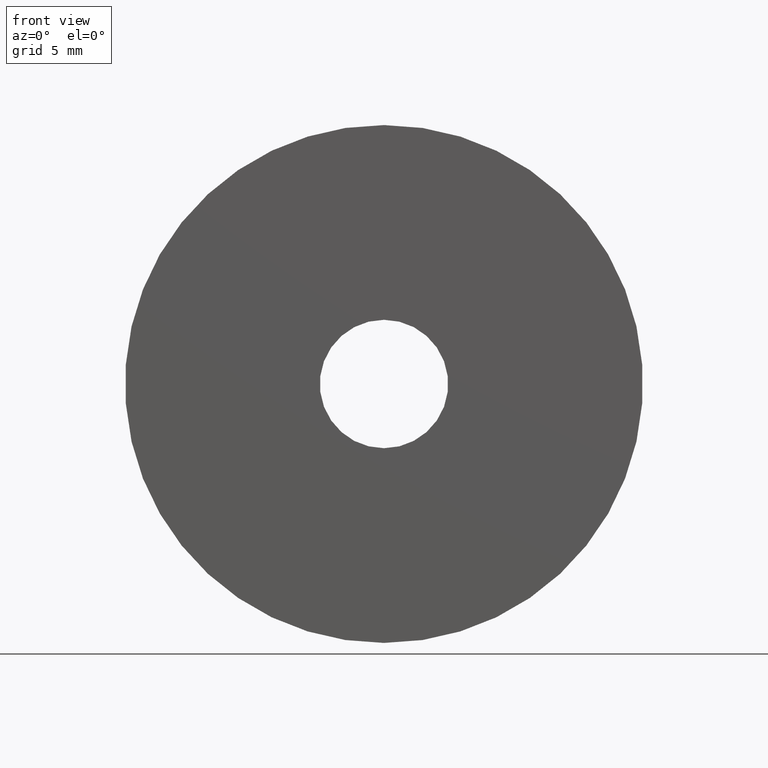
[diagram: clean part render]
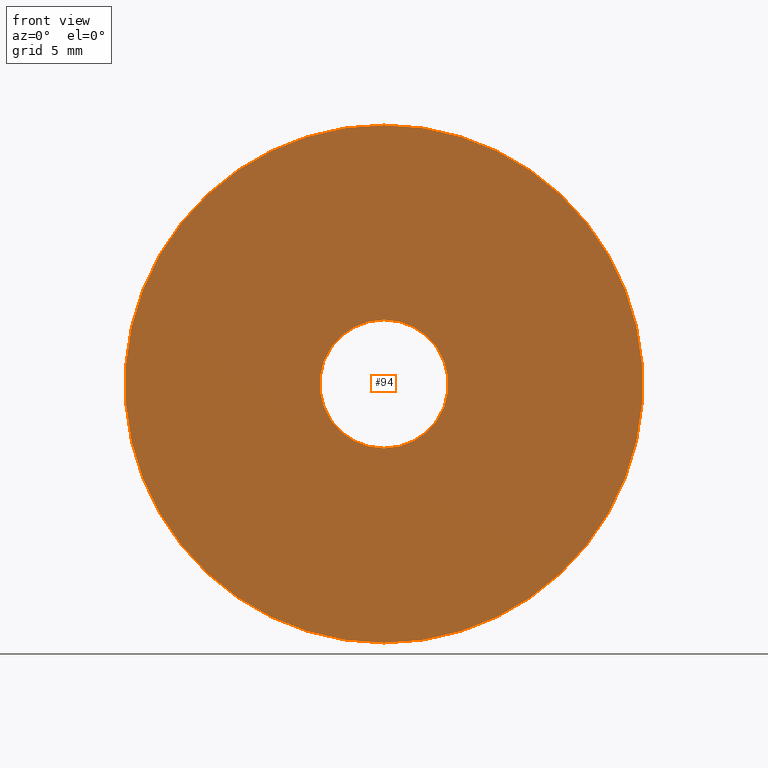
[diagram: same view with one face highlighted and labeled with its STEP entity id]
A machine part, front view. The second image highlights one B-rep face of the part: STEP entity #94.
In plain terms, the highlighted planar face has unit normal (0, 1, 0).
Its self-contained STEP definition (entity closure, byte-faithful):
#9 = CIRCLE ( 'NONE', #131, 3.100000000000000089 ) ;
#21 = AXIS2_PLACEMENT_3D ( 'NONE', #32, #105, #71 ) ;
#23 = EDGE_CURVE ( 'NONE', #211, #212, #34, .T. ) ;
#28 = EDGE_CURVE ( 'NONE', #212, #211, #150, .T. ) ;
#31 = EDGE_LOOP ( 'NONE', ( #241, #225 ) ) ;
#32 = CARTESIAN_POINT ( 'NONE',  ( 0.000000000000000000, -0.2500000000000000000, 0.000000000000000000 ) ) ;
#33 = CARTESIAN_POINT ( 'NONE',  ( 0.000000000000000000, -0.2500000000000000000, 0.000000000000000000 ) ) ;
#34 = CIRCLE ( 'NONE', #157, 12.50000000000000000 ) ;
#68 = VERTEX_POINT ( 'NONE', #155 ) ;
#71 = DIRECTION ( 'NONE',  ( 0.000000000000000000, 0.000000000000000000, 1.000000000000000000 ) ) ;
#89 = DIRECTION ( 'NONE',  ( 0.000000000000000000, 1.000000000000000000, 0.000000000000000000 ) ) ;
#94 = ADVANCED_FACE ( 'NONE', ( #226, #173 ), #249, .F. ) ;
#101 = AXIS2_PLACEMENT_3D ( 'NONE', #246, #89, #231 ) ;
#105 = DIRECTION ( 'NONE',  ( 0.000000000000000000, 1.000000000000000000, 0.000000000000000000 ) ) ;
#113 = CARTESIAN_POINT ( 'NONE',  ( 0.000000000000000000, -0.2500000000000000000, 0.000000000000000000 ) ) ;
#114 = DIRECTION ( 'NONE',  ( 0.000000000000000000, 1.000000000000000000, 0.000000000000000000 ) ) ;
#121 = EDGE_LOOP ( 'NONE', ( #239, #162 ) ) ;
#123 = VERTEX_POINT ( 'NONE', #127 ) ;
#127 = CARTESIAN_POINT ( 'NONE',  ( 3.796405077356794918E-16, -0.2500000000000000000, -3.100000000000000089 ) ) ;
#131 = AXIS2_PLACEMENT_3D ( 'NONE', #113, #114, #136 ) ;
#134 = CARTESIAN_POINT ( 'NONE',  ( 0.000000000000000000, -0.2500000000000000000, 0.000000000000000000 ) ) ;
#135 = CARTESIAN_POINT ( 'NONE',  ( 0.000000000000000000, -0.2500000000000000000, -12.50000000000000000 ) ) ;
#136 = DIRECTION ( 'NONE',  ( 0.000000000000000000, 0.000000000000000000, 1.000000000000000000 ) ) ;
#146 = DIRECTION ( 'NONE',  ( 0.000000000000000000, 0.000000000000000000, 1.000000000000000000 ) ) ;
#147 = EDGE_CURVE ( 'NONE', #123, #68, #169, .T. ) ;
#150 = CIRCLE ( 'NONE', #21, 12.50000000000000000 ) ;
#155 = CARTESIAN_POINT ( 'NONE',  ( 0.000000000000000000, -0.2500000000000000000, 3.100000000000000089 ) ) ;
#157 = AXIS2_PLACEMENT_3D ( 'NONE', #33, #247, #146 ) ;
#162 = ORIENTED_EDGE ( 'NONE', *, *, #28, .F. ) ;
#163 = AXIS2_PLACEMENT_3D ( 'NONE', #134, #216, #215 ) ;
#169 = CIRCLE ( 'NONE', #163, 3.100000000000000089 ) ;
#173 = FACE_OUTER_BOUND ( 'NONE', #121, .T. ) ;
#175 = CARTESIAN_POINT ( 'NONE',  ( 1.530808498934191521E-15, -0.2500000000000000000, 12.50000000000000000 ) ) ;
#211 = VERTEX_POINT ( 'NONE', #135 ) ;
#212 = VERTEX_POINT ( 'NONE', #175 ) ;
#215 = DIRECTION ( 'NONE',  ( 0.000000000000000000, 0.000000000000000000, 1.000000000000000000 ) ) ;
#216 = DIRECTION ( 'NONE',  ( 0.000000000000000000, 1.000000000000000000, 0.000000000000000000 ) ) ;
#223 = EDGE_CURVE ( 'NONE', #68, #123, #9, .T. ) ;
#225 = ORIENTED_EDGE ( 'NONE', *, *, #147, .T. ) ;
#226 = FACE_BOUND ( 'NONE', #31, .T. ) ;
#231 = DIRECTION ( 'NONE',  ( 0.000000000000000000, -0.000000000000000000, 1.000000000000000000 ) ) ;
#239 = ORIENTED_EDGE ( 'NONE', *, *, #23, .F. ) ;
#241 = ORIENTED_EDGE ( 'NONE', *, *, #223, .T. ) ;
#246 = CARTESIAN_POINT ( 'NONE',  ( 0.000000000000000000, -0.2500000000000000000, 0.000000000000000000 ) ) ;
#247 = DIRECTION ( 'NONE',  ( 0.000000000000000000, 1.000000000000000000, 0.000000000000000000 ) ) ;
#249 = PLANE ( 'NONE',  #101 ) ;